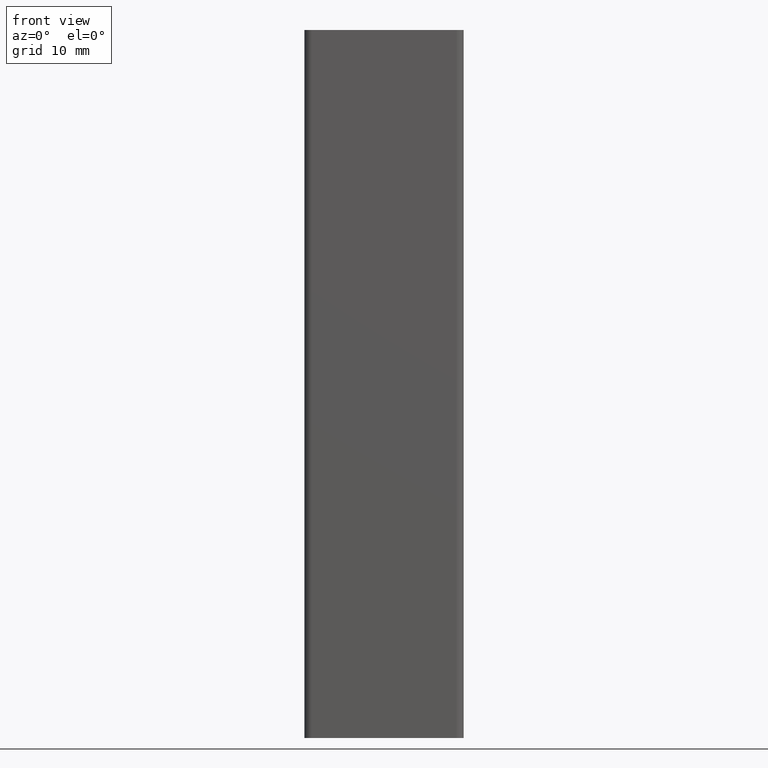
[diagram: clean part render]
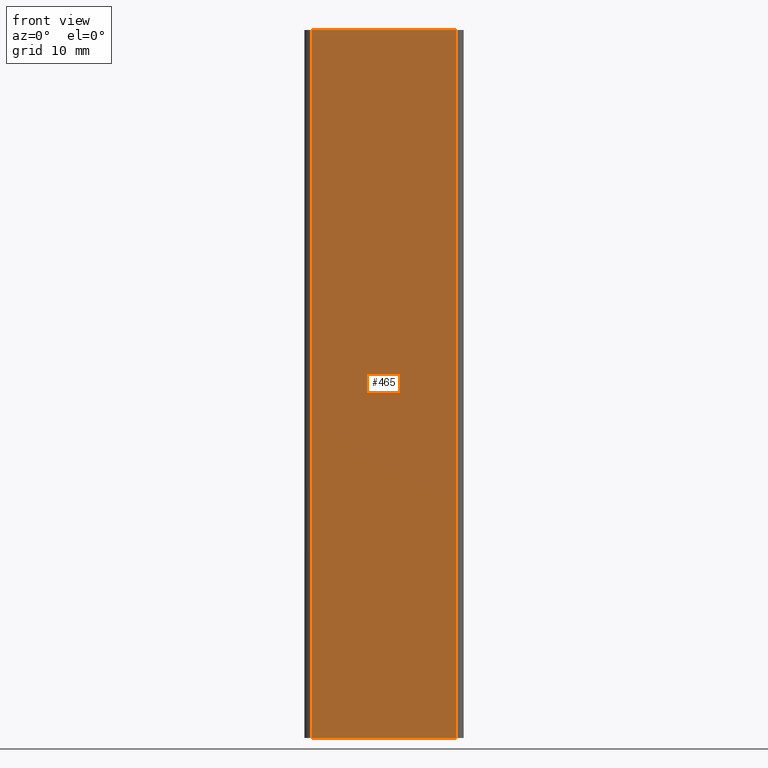
[diagram: same view with one face highlighted and labeled with its STEP entity id]
A machine part, front view. The second image highlights one B-rep face of the part: STEP entity #465.
In plain terms, the highlighted planar face has unit normal (0, -1, 0).
Its self-contained STEP definition (entity closure, byte-faithful):
#56=LINE('',#746,#107);
#57=LINE('',#750,#108);
#58=LINE('',#754,#109);
#59=LINE('',#755,#110);
#107=VECTOR('',#605,20.5);
#108=VECTOR('',#610,100.);
#109=VECTOR('',#615,100.);
#110=VECTOR('',#616,20.5);
#130=PLANE('',#502);
#154=FACE_OUTER_BOUND('',#180,.T.);
#180=EDGE_LOOP('',(#395,#396,#397,#398));
#238=VERTEX_POINT('',#743);
#239=VERTEX_POINT('',#745);
#240=VERTEX_POINT('',#749);
#241=VERTEX_POINT('',#753);
#296=EDGE_CURVE('',#239,#238,#56,.T.);
#298=EDGE_CURVE('',#240,#239,#57,.T.);
#300=EDGE_CURVE('',#241,#238,#58,.T.);
#301=EDGE_CURVE('',#240,#241,#59,.T.);
#395=ORIENTED_EDGE('',*,*,#296,.T.);
#396=ORIENTED_EDGE('',*,*,#300,.F.);
#397=ORIENTED_EDGE('',*,*,#301,.F.);
#398=ORIENTED_EDGE('',*,*,#298,.T.);
#465=ADVANCED_FACE('',(#154),#130,.T.);
#502=AXIS2_PLACEMENT_3D('',#752,#613,#614);
#605=DIRECTION('',(-1.,-1.08314441426845E-16,0.));
#610=DIRECTION('',(0.,0.,1.));
#613=DIRECTION('center_axis',(1.08314441426845E-16,-1.,0.));
#614=DIRECTION('ref_axis',(1.,8.88178419700125E-17,0.));
#615=DIRECTION('',(0.,0.,1.));
#616=DIRECTION('',(-1.,-1.08314441426845E-16,0.));
#743=CARTESIAN_POINT('',(-5.5,-6.5,100.));
#745=CARTESIAN_POINT('',(15.,-6.5,100.));
#746=CARTESIAN_POINT('',(-0.374999999999999,-6.5,100.));
#749=CARTESIAN_POINT('',(15.,-6.5,0.));
#750=CARTESIAN_POINT('',(15.,-6.5,0.));
#752=CARTESIAN_POINT('Origin',(-5.5,-6.5,0.));
#753=CARTESIAN_POINT('',(-5.5,-6.5,0.));
#754=CARTESIAN_POINT('',(-5.5,-6.5,0.));
#755=CARTESIAN_POINT('',(-0.374999999999999,-6.5,0.));